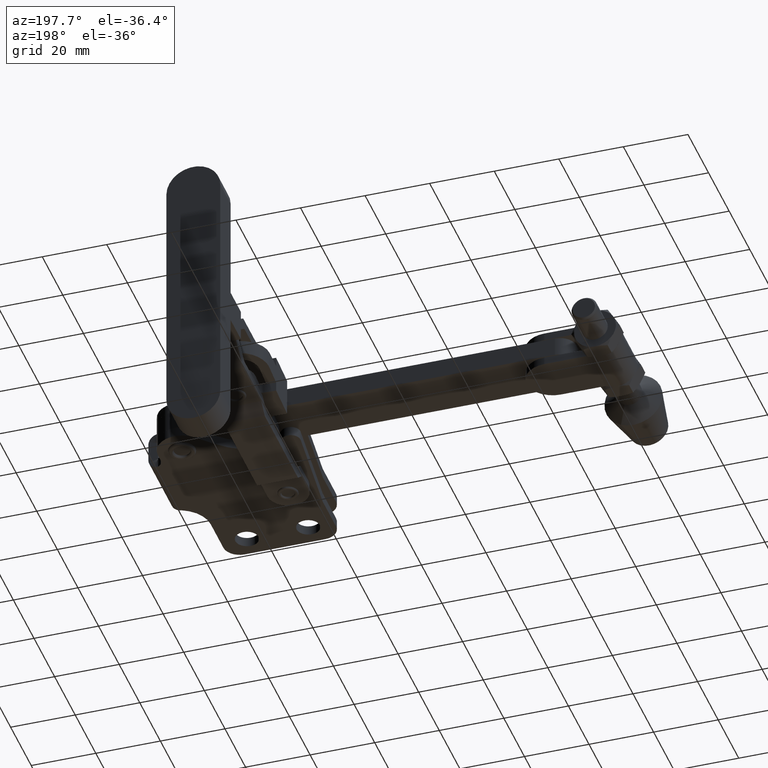
[diagram: clean part render]
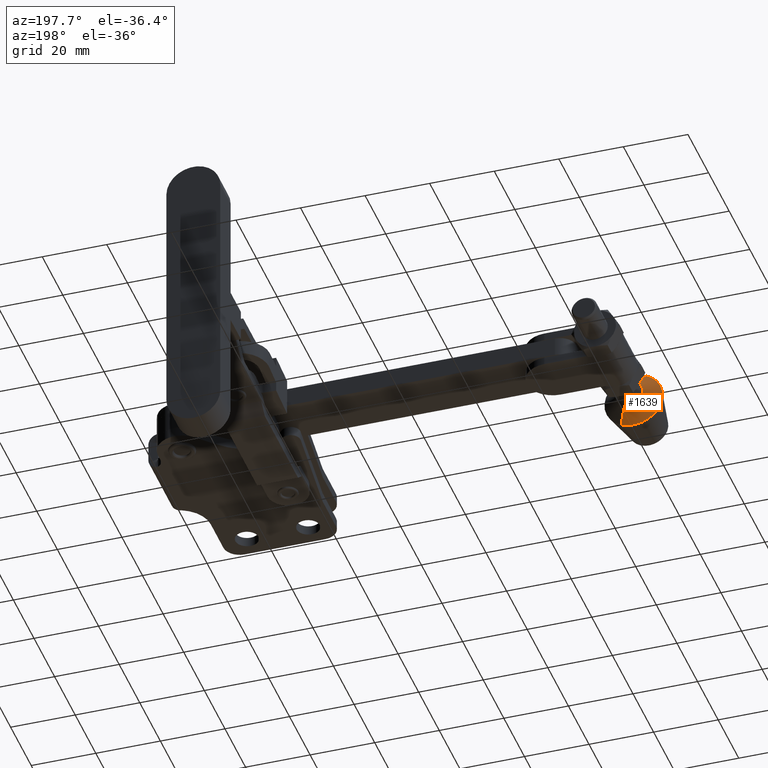
[diagram: same view with one face highlighted and labeled with its STEP entity id]
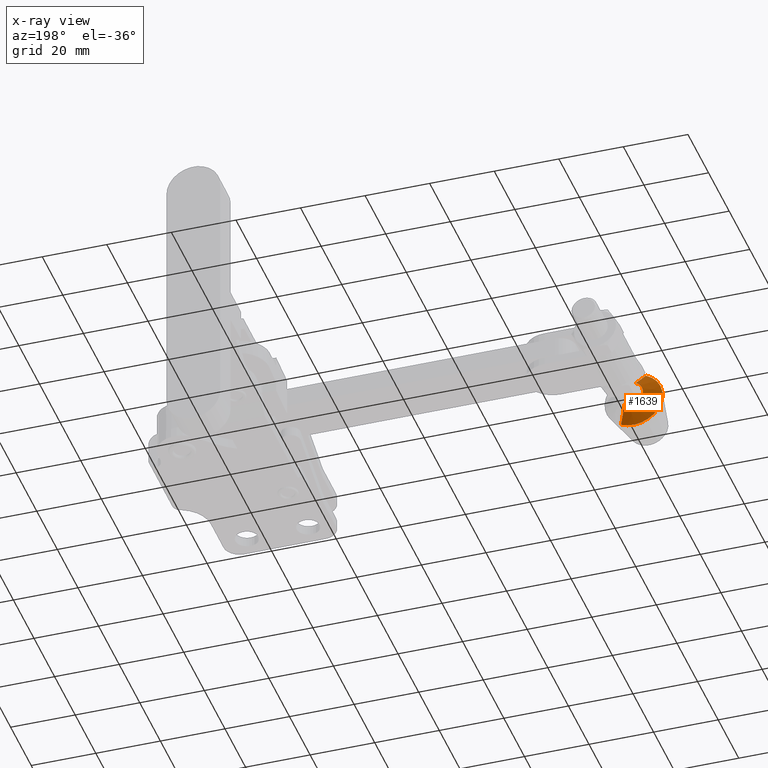
[diagram: x-ray of the same camera — body ghosted, the highlighted face saturated]
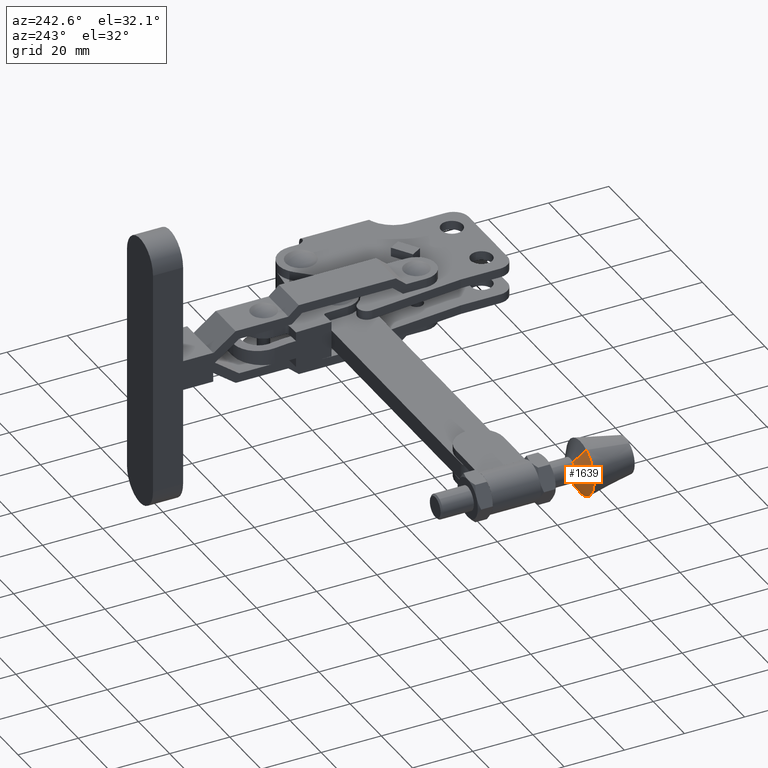
[diagram: same view with one face highlighted and labeled with its STEP entity id]
A machine part, auxiliary view. The second image highlights one B-rep face of the part: STEP entity #1639.
The next image is the same camera in x-ray: the body ghosted, the highlighted face saturated — about 0% of this face is hidden behind the body in this view.
A second angle (auxiliary view) of the same face is appended — the face is thin or edge-on in the first view.
In plain terms, the highlighted conical surface has half-angle 56.759 deg.
Its self-contained STEP definition (entity closure, byte-faithful):
#283 = EDGE_CURVE ( 'NONE', #7693, #1705, #6297, .T. ) ;
#371 = AXIS2_PLACEMENT_3D ( 'NONE', #3278, #3237, #3199 ) ;
#430 = VERTEX_POINT ( 'NONE', #7834 ) ;
#538 = CARTESIAN_POINT ( 'NONE',  ( -140.3342406397382300, 15.35000000000007400, -8.124834567061412800 ) ) ;
#771 = CARTESIAN_POINT ( 'NONE',  ( -148.0768663591912900, 15.35000000000007100, 8.124834567061398600 ) ) ;
#1423 = EDGE_CURVE ( 'NONE', #430, #2162, #8047, .T. ) ;
#1639 = ADVANCED_FACE ( 'NONE', ( #3761 ), #7142, .T. ) ;
#1705 = VERTEX_POINT ( 'NONE', #6549 ) ;
#2134 = VECTOR ( 'NONE', #4897, 1000.000000000000100 ) ;
#2162 = VERTEX_POINT ( 'NONE', #8691 ) ;
#2570 = ORIENTED_EDGE ( 'NONE', *, *, #1423, .T. ) ;
#3199 = DIRECTION ( 'NONE',  ( 0.4301458733029479000, 1.927470528863120500E-016, -0.9027593963401568900 ) ) ;
#3237 = DIRECTION ( 'NONE',  ( 6.844972190226000900E-017, -1.000000000000000000, -1.521337052038029000E-016 ) ) ;
#3278 = CARTESIAN_POINT ( 'NONE',  ( -144.2055534994647700, 15.35000000000007200, -7.066354033774541100E-015 ) ) ;
#3585 = EDGE_CURVE ( 'NONE', #7693, #430, #8495, .T. ) ;
#3633 = VECTOR ( 'NONE', #4913, 1000.000000000000000 ) ;
#3761 = FACE_OUTER_BOUND ( 'NONE', #6089, .T. ) ;
#4234 = ORIENTED_EDGE ( 'NONE', *, *, #283, .F. ) ;
#4492 = EDGE_CURVE ( 'NONE', #1705, #2162, #9626, .T. ) ;
#4897 = DIRECTION ( 'NONE',  ( -0.3597607675812525800, -0.5481665181012950200, 0.7550401701512645700 ) ) ;
#4913 = DIRECTION ( 'NONE',  ( 0.3597607675812528000, -0.5481665181012946900, -0.7550401701512646800 ) ) ;
#5690 = CARTESIAN_POINT ( 'NONE',  ( -144.2055534994647700, 15.35000000000007200, -7.066354033774541100E-015 ) ) ;
#6054 = AXIS2_PLACEMENT_3D ( 'NONE', #10595, #10554, #10513 ) ;
#6089 = EDGE_LOOP ( 'NONE', ( #4234, #6127, #2570, #7632 ) ) ;
#6127 = ORIENTED_EDGE ( 'NONE', *, *, #3585, .T. ) ;
#6297 = LINE ( 'NONE', #771, #2134 ) ;
#6359 = DIRECTION ( 'NONE',  ( 0.4301458733029479000, 1.927470528863120500E-016, -0.9027593963401568900 ) ) ;
#6549 = CARTESIAN_POINT ( 'NONE',  ( -148.0768663591913100, 15.35000000000007200, 8.124834567061391500 ) ) ;
#6921 = CARTESIAN_POINT ( 'NONE',  ( -145.9110818871109200, 18.65000000000007300, 3.579441006488719000 ) ) ;
#7142 = CONICAL_SURFACE ( 'NONE', #10345, 8.999999999999992900, 0.9906258598019723700 ) ;
#7152 = DIRECTION ( 'NONE',  ( 6.844972190226000900E-017, -1.000000000000000000, -1.521337052038029000E-016 ) ) ;
#7632 = ORIENTED_EDGE ( 'NONE', *, *, #4492, .F. ) ;
#7693 = VERTEX_POINT ( 'NONE', #6921 ) ;
#7834 = CARTESIAN_POINT ( 'NONE',  ( -142.5000251118185900, 18.65000000000007300, -3.579441006488731000 ) ) ;
#8047 = LINE ( 'NONE', #538, #3633 ) ;
#8495 = CIRCLE ( 'NONE', #6054, 3.965000000000009600 ) ;
#8691 = CARTESIAN_POINT ( 'NONE',  ( -140.3342406397382000, 15.35000000000007200, -8.124834567061418200 ) ) ;
#9626 = CIRCLE ( 'NONE', #371, 8.999999999999992900 ) ;
#10345 = AXIS2_PLACEMENT_3D ( 'NONE', #5690, #7152, #6359 ) ;
#10513 = DIRECTION ( 'NONE',  ( 0.4301458733029509500, 0.0000000000000000000, -0.9027593963401552300 ) ) ;
#10554 = DIRECTION ( 'NONE',  ( 6.844972190226000900E-017, -1.000000000000000000, -1.521337052038029000E-016 ) ) ;
#10595 = CARTESIAN_POINT ( 'NONE',  ( -144.2055534994647700, 18.65000000000007300, -6.564312806601991000E-015 ) ) ;